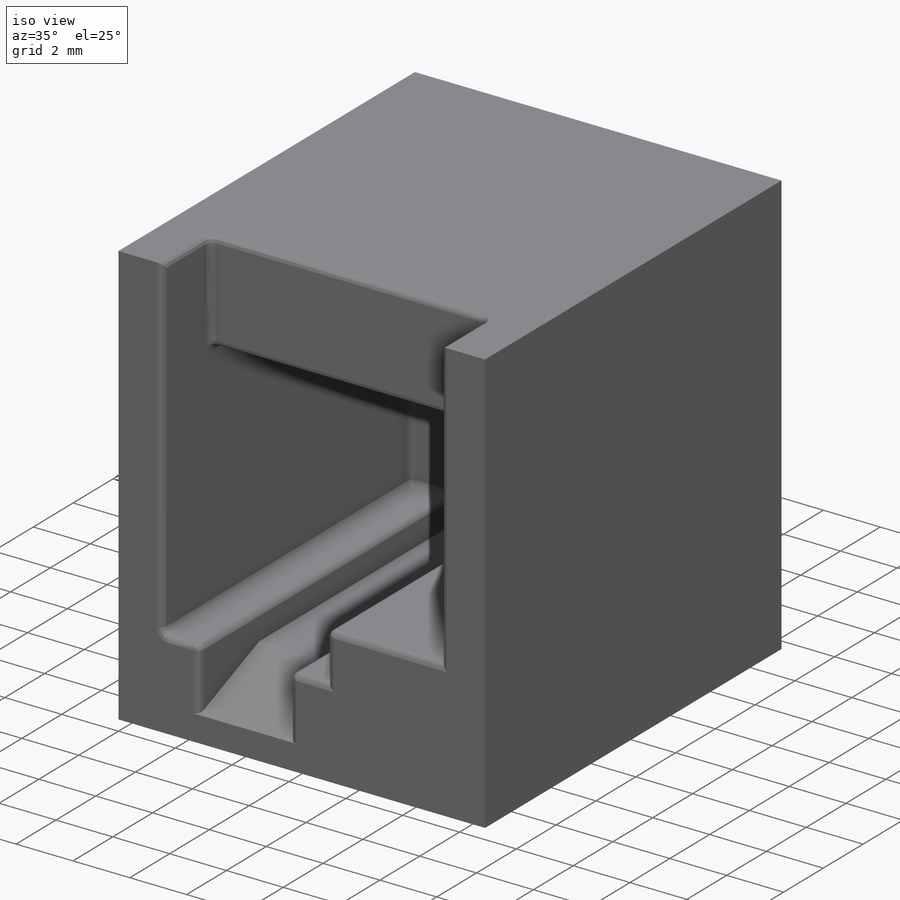
[diagram: iso view]
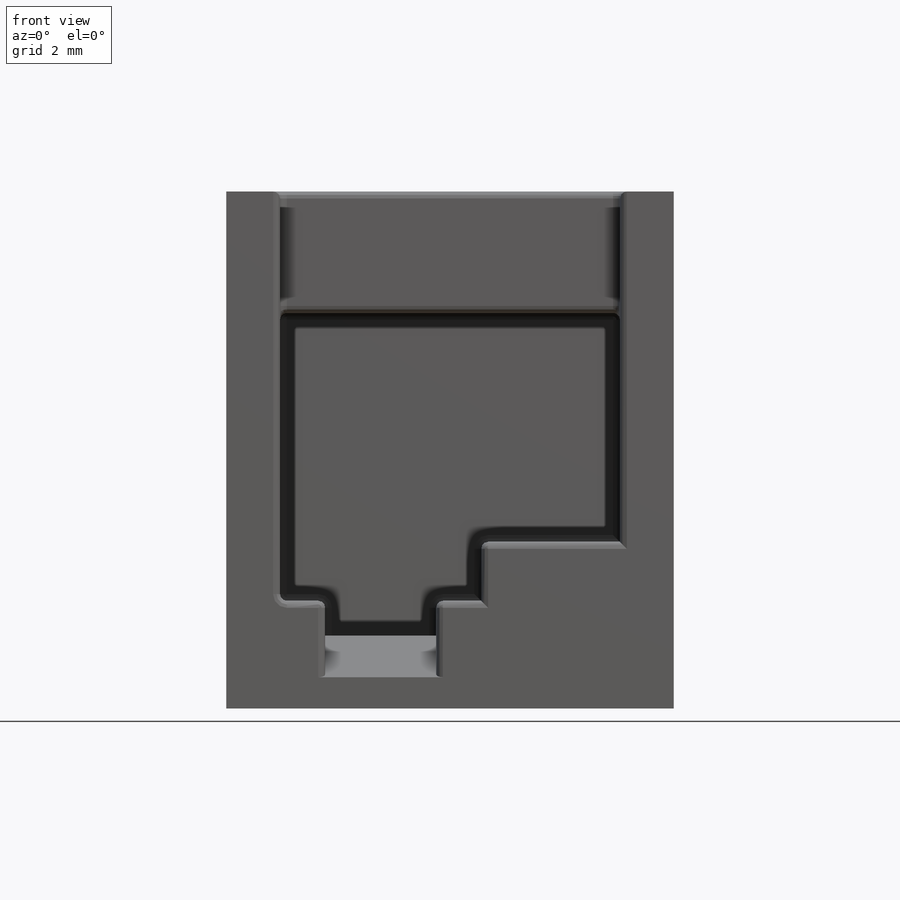
[diagram: front view]
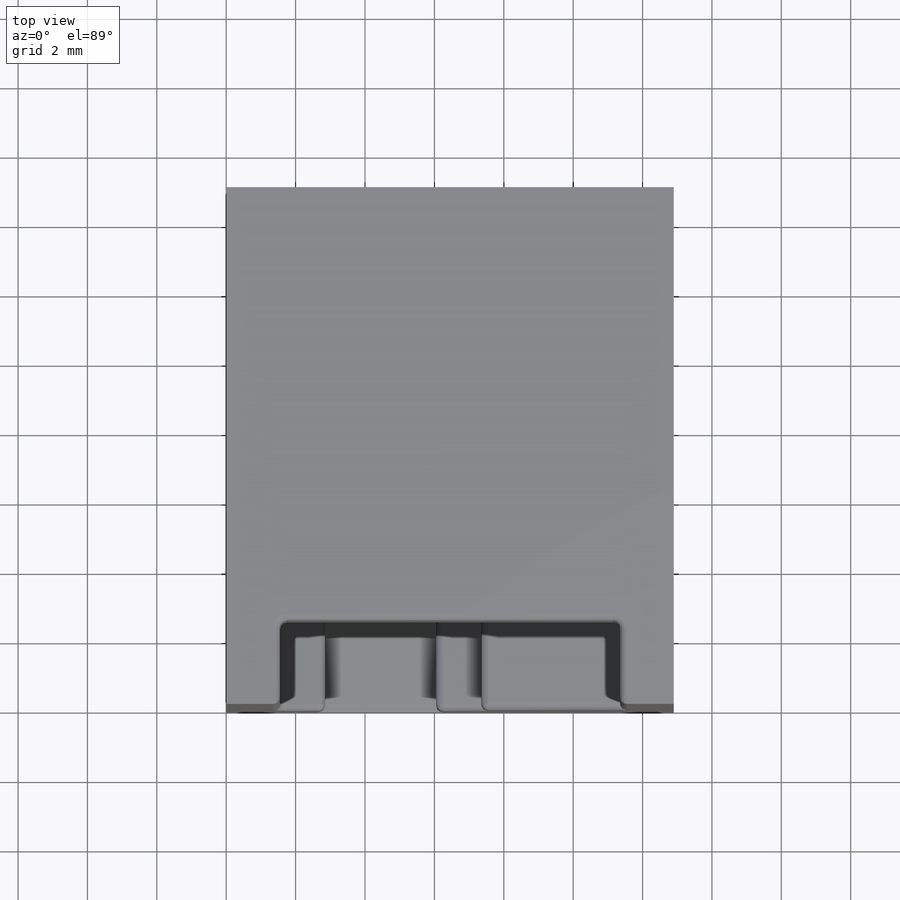
[diagram: top view]
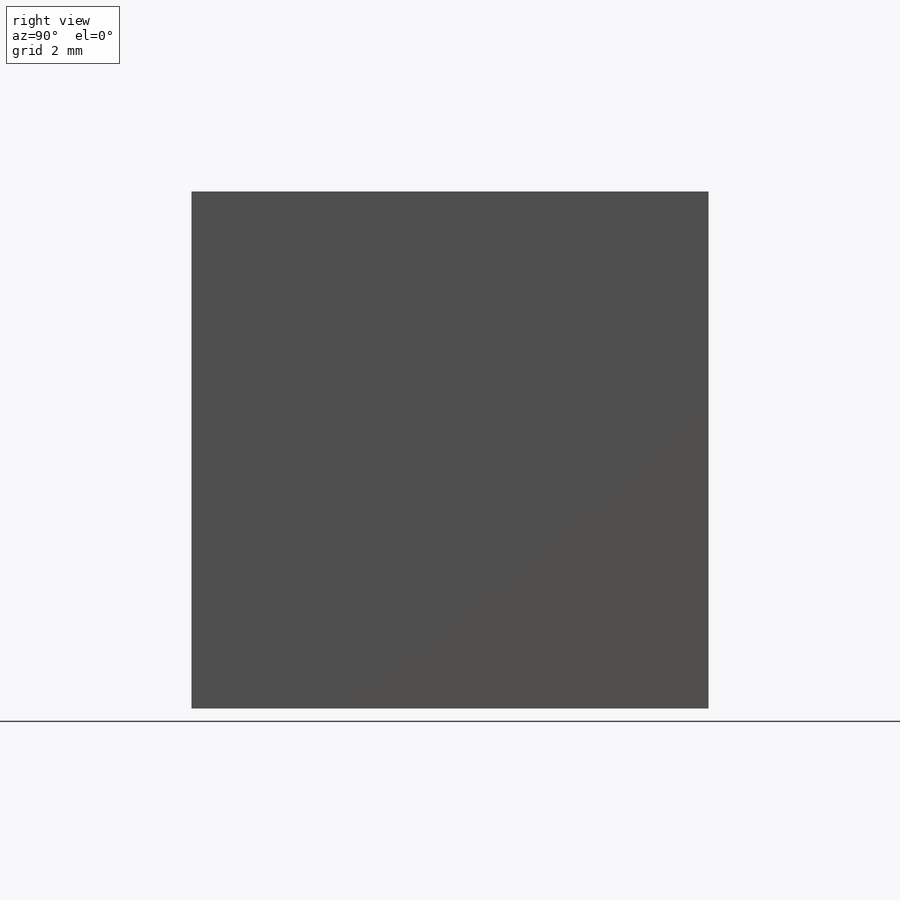
[diagram: right view]
SOLIDWORKS PART (.sldprt)
format: sldprt  version: not decoded by parser v0  size: 257,536 bytes
history: native  units: mm
features: sketch x3, cut_extrude x2, material x1, extrude x1, chamfer x1, fillet x1 (+11 scaffold rows collapsed)
feature tree (20):
  scaffold x11  (default folders/planes/origin — collapsed)
  material  "PVC Rigid"
  sketch  "Sketch1"  dims[D1=12.9mm D2=14.9mm]
  extrude  "Extrude1"  Depth=14.9mm
  sketch  "Sketch2"  dims[D1=9.8mm D2=3.5mm D3=1.55mm]
  cut_extrude  "Extrude2"  Depth=2.4mm
  sketch  "Sketch3"  dims[D1=4.0mm D2=1.3mm D3=3.2mm D4=6.6mm D5=11.8mm D6=12.8mm]
  cut_extrude  "Extrude3"  Depth=12.5mm
  chamfer  "Chamfer1"  Distance=1.2mm
  fillet  "Fillet1"  Radius=0.2mm
decode coverage: 8 of 8 modeling features carry decoded parameters
note: suppression state not decoded; provenance and decode notes live in map.json
